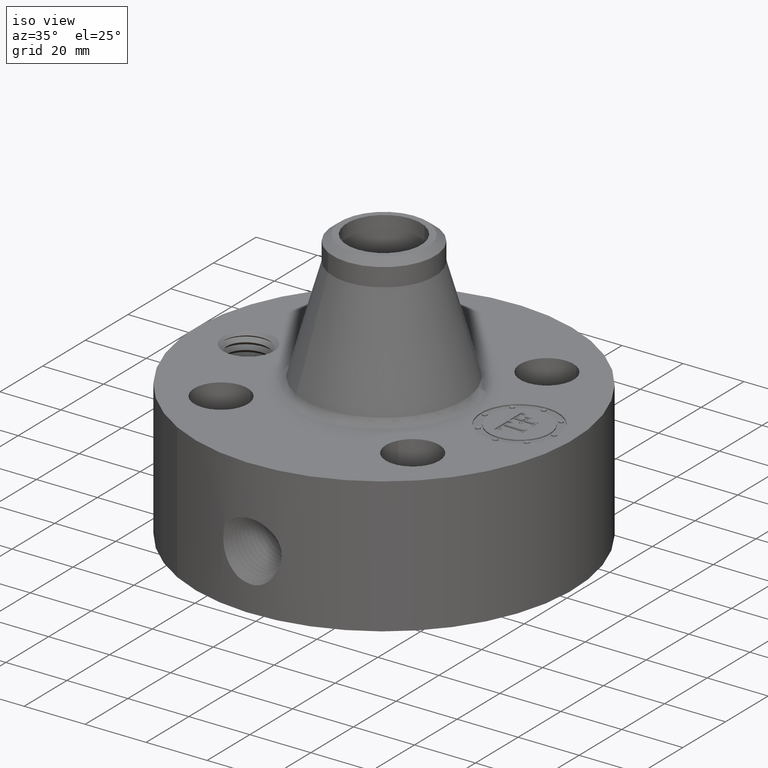
[diagram: clean part render]
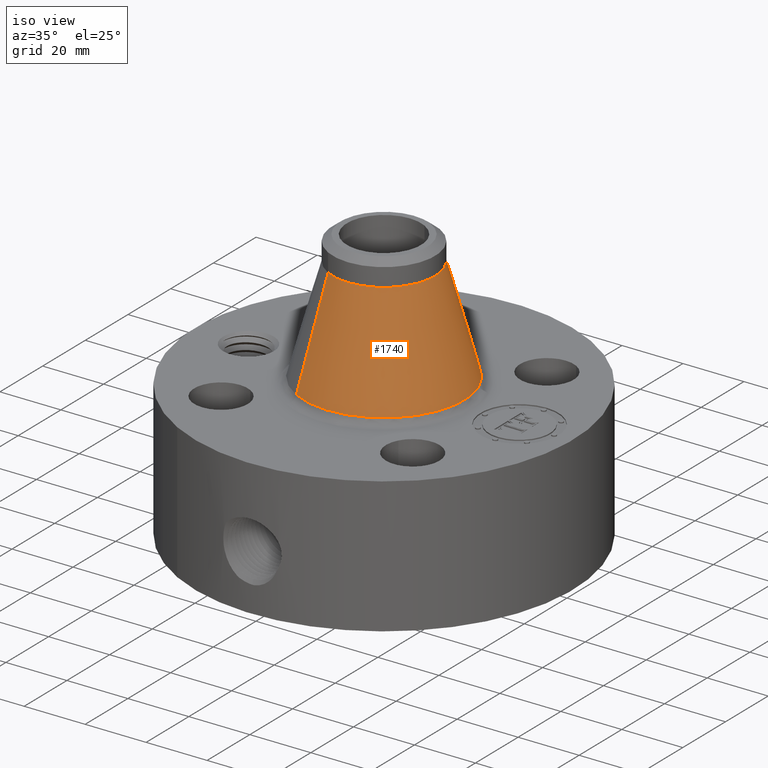
[diagram: same view with one face highlighted and labeled with its STEP entity id]
A machine part, iso view. The second image highlights one B-rep face of the part: STEP entity #1740.
In plain terms, the highlighted conical surface has half-angle 15.576 deg.
Its self-contained STEP definition (entity closure, byte-faithful):
#1364=AXIS2_PLACEMENT_3D('Circle Axis2P3D',#1362,#1363,$) ;
#1701=AXIS2_PLACEMENT_3D('Cone Axis2P3D',#1698,#1699,#1700) ;
#1731=AXIS2_PLACEMENT_3D('Circle Axis2P3D',#1729,#1730,$) ;
#1339=CARTESIAN_POINT('Vertex',(0.31642085548,0.57920449085,3.18492912713)) ;
#1346=CARTESIAN_POINT('Vertex',(-0.31642085548,-0.57920449085,3.18492912713)) ;
#1362=CARTESIAN_POINT('Axis2P3D Location',(0.,0.,3.18492912713)) ;
#1698=CARTESIAN_POINT('Axis2P3D Location',(0.,0.,3.18492912713)) ;
#1707=CARTESIAN_POINT('Vertex',(-0.496460113538,-0.908764142151,1.83777740799)) ;
#1709=CARTESIAN_POINT('Vertex',(0.496460113538,0.908764142151,1.83777740799)) ;
#1712=CARTESIAN_POINT('Line Origine',(-0.406440484509,-0.743984316501,2.51135326756)) ;
#1717=CARTESIAN_POINT('Line Origine',(0.406440484509,0.743984316501,2.51135326756)) ;
#1729=CARTESIAN_POINT('Axis2P3D Location',(0.,0.,1.83777740799)) ;
#1363=DIRECTION('Axis2P3D Direction',(0.,0.,-0.0393700787402)) ;
#1699=DIRECTION('Axis2P3D Direction',(0.,0.,-0.0393700787402)) ;
#1700=DIRECTION('Axis2P3D XDirection',(0.0188750212049,0.0345504945626,0.)) ;
#1713=DIRECTION('Vector Direction',(-0.00506835089648,-0.00927755408533,-0.0379241599695)) ;
#1718=DIRECTION('Vector Direction',(0.00506835089648,0.00927755408533,-0.0379241599695)) ;
#1730=DIRECTION('Axis2P3D Direction',(0.,0.,-0.0393700787402)) ;
#1714=VECTOR('Line Direction',#1713,0.0393700787402) ;
#1719=VECTOR('Line Direction',#1718,0.0393700787402) ;
#1735=ORIENTED_EDGE('',*,*,#1733,.F.) ;
#1736=ORIENTED_EDGE('',*,*,#1721,.T.) ;
#1737=ORIENTED_EDGE('',*,*,#1366,.T.) ;
#1738=ORIENTED_EDGE('',*,*,#1716,.F.) ;
#1740=ADVANCED_FACE('PartBody',(#1739),#1702,.T.) ;
#1365=CIRCLE('generated circle',#1364,0.660000000003) ;
#1732=CIRCLE('generated circle',#1731,1.03553122135) ;
#1702=CONICAL_SURFACE('Cone',#1701,0.660000000003,0.271857936206) ;
#1366=EDGE_CURVE('',#1340,#1347,#1365,.T.) ;
#1716=EDGE_CURVE('',#1708,#1347,#1715,.F.) ;
#1721=EDGE_CURVE('',#1710,#1340,#1720,.F.) ;
#1733=EDGE_CURVE('',#1710,#1708,#1732,.T.) ;
#1734=EDGE_LOOP('',(#1735,#1736,#1737,#1738)) ;
#1739=FACE_OUTER_BOUND('',#1734,.T.) ;
#1715=LINE('Line',#1712,#1714) ;
#1720=LINE('Line',#1717,#1719) ;
#1340=VERTEX_POINT('',#1339) ;
#1347=VERTEX_POINT('',#1346) ;
#1708=VERTEX_POINT('',#1707) ;
#1710=VERTEX_POINT('',#1709) ;